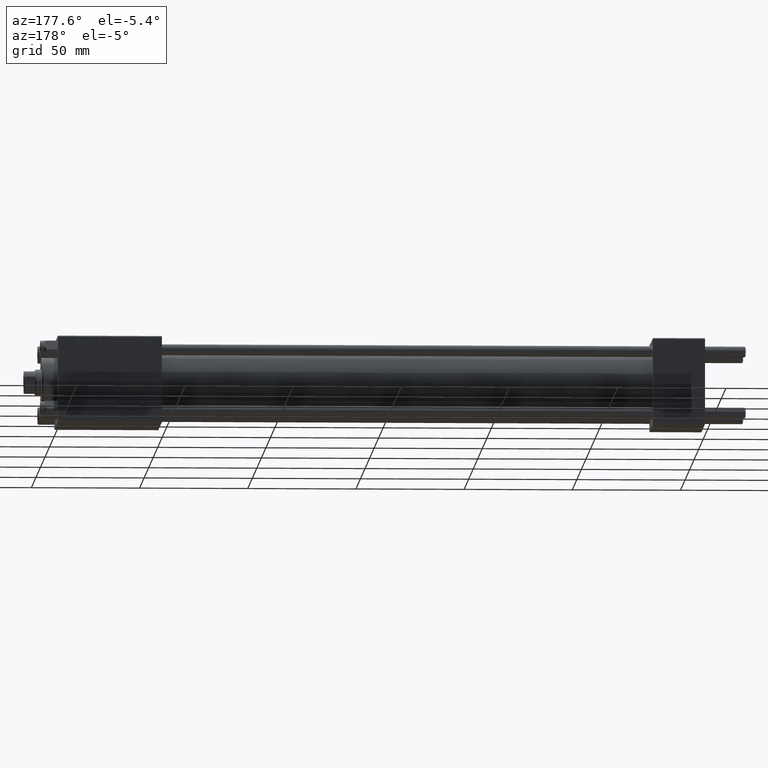
[diagram: clean part render]
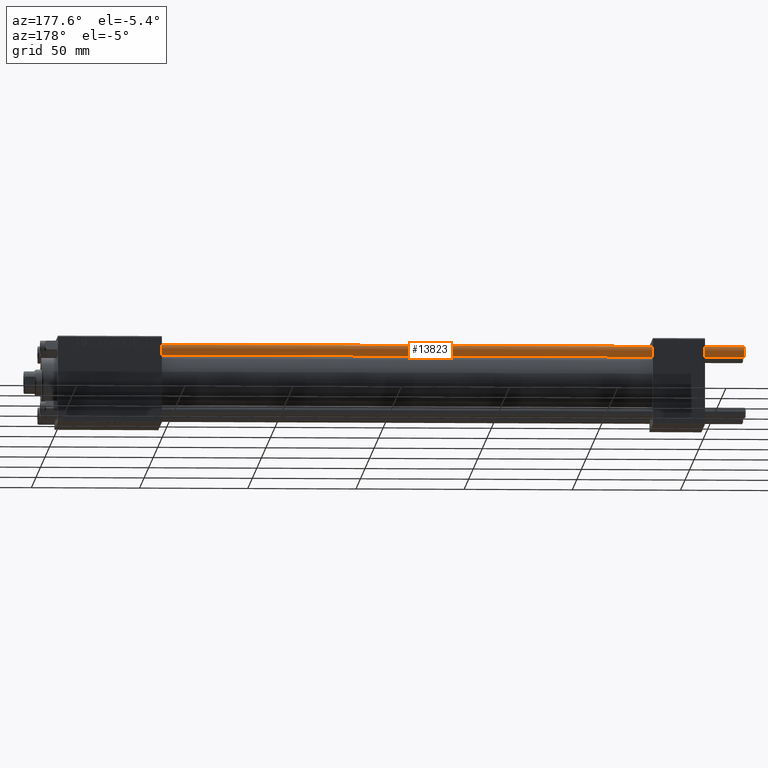
[diagram: same view with one face highlighted and labeled with its STEP entity id]
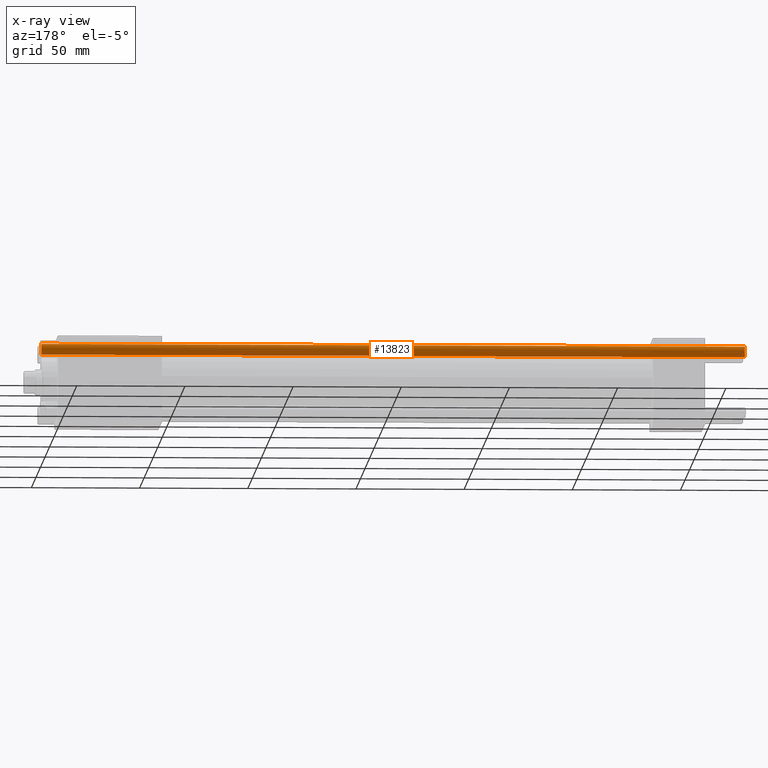
[diagram: x-ray of the same camera — body ghosted, the highlighted face saturated]
A machine part, auxiliary view. The second image highlights one B-rep face of the part: STEP entity #13823.
The next image is the same camera in x-ray: the body ghosted, the highlighted face saturated — about 0% of this face is hidden behind the body in this view.
In plain terms, the highlighted cylindrical surface (edge-blend (fillet) strip) has radius 2.5 mm, axis along (-1, -0, -0).
Its self-contained STEP definition (entity closure, byte-faithful):
#27 = CARTESIAN_POINT ( 'NONE',  ( 0.000000000000000000, 0.000000000000000000, 326.0000000000000000 ) ) ;
#1253 = CIRCLE ( 'NONE', #27856, 2.500000000000000000 ) ;
#2735 = EDGE_CURVE ( 'NONE', #37084, #43225, #11320, .T. ) ;
#3382 = LINE ( 'NONE', #25626, #12634 ) ;
#3662 = ORIENTED_EDGE ( 'NONE', *, *, #35606, .F. ) ;
#5645 = AXIS2_PLACEMENT_3D ( 'NONE', #11221, #5980, #38261 ) ;
#5980 = DIRECTION ( 'NONE',  ( 0.000000000000000000, 0.000000000000000000, -1.000000000000000000 ) ) ;
#7786 = VECTOR ( 'NONE', #27686, 1000.000000000000000 ) ;
#9785 = EDGE_LOOP ( 'NONE', ( #32160, #11732, #41149, #3662 ) ) ;
#10905 = DIRECTION ( 'NONE',  ( -0.000000000000000000, -0.000000000000000000, 1.000000000000000000 ) ) ;
#11221 = CARTESIAN_POINT ( 'NONE',  ( 0.000000000000000000, 0.000000000000000000, 325.5000000000000000 ) ) ;
#11320 = CIRCLE ( 'NONE', #5645, 2.500000000000000000 ) ;
#11732 = ORIENTED_EDGE ( 'NONE', *, *, #26496, .T. ) ;
#12634 = VECTOR ( 'NONE', #22839, 1000.000000000000000 ) ;
#13661 = CARTESIAN_POINT ( 'NONE',  ( -2.500000000000000000, 0.000000000000000000, 325.5000000000000000 ) ) ;
#13823 = ADVANCED_FACE ( 'NONE', ( #30086 ), #38674, .T. ) ;
#14927 = DIRECTION ( 'NONE',  ( -1.000000000000000000, 0.000000000000000000, 0.000000000000000000 ) ) ;
#15392 = VERTEX_POINT ( 'NONE', #27489 ) ;
#18995 = CARTESIAN_POINT ( 'NONE',  ( 0.000000000000000000, 0.000000000000000000, 0.4999999999999449329 ) ) ;
#22164 = EDGE_CURVE ( 'NONE', #15392, #29195, #1253, .T. ) ;
#22839 = DIRECTION ( 'NONE',  ( -0.000000000000000000, -0.000000000000000000, -1.000000000000000000 ) ) ;
#25626 = CARTESIAN_POINT ( 'NONE',  ( 2.500000000000000000, 3.061616997868383141E-16, 326.0000000000000000 ) ) ;
#26333 = DIRECTION ( 'NONE',  ( 1.000000000000000000, 0.000000000000000000, 0.000000000000000000 ) ) ;
#26496 = EDGE_CURVE ( 'NONE', #43225, #15392, #3382, .T. ) ;
#27489 = CARTESIAN_POINT ( 'NONE',  ( 2.500000000000000000, 3.061616997868383141E-16, 0.4999999999999449329 ) ) ;
#27680 = AXIS2_PLACEMENT_3D ( 'NONE', #27, #38419, #14927 ) ;
#27686 = DIRECTION ( 'NONE',  ( -0.000000000000000000, -0.000000000000000000, -1.000000000000000000 ) ) ;
#27856 = AXIS2_PLACEMENT_3D ( 'NONE', #18995, #10905, #26333 ) ;
#29195 = VERTEX_POINT ( 'NONE', #30495 ) ;
#30086 = FACE_OUTER_BOUND ( 'NONE', #9785, .T. ) ;
#30495 = CARTESIAN_POINT ( 'NONE',  ( -2.500000000000000000, 0.000000000000000000, 0.4999999999999449329 ) ) ;
#31482 = LINE ( 'NONE', #39304, #7786 ) ;
#32160 = ORIENTED_EDGE ( 'NONE', *, *, #2735, .T. ) ;
#35606 = EDGE_CURVE ( 'NONE', #37084, #29195, #31482, .T. ) ;
#37084 = VERTEX_POINT ( 'NONE', #13661 ) ;
#38261 = DIRECTION ( 'NONE',  ( 1.000000000000000000, 0.000000000000000000, 0.000000000000000000 ) ) ;
#38419 = DIRECTION ( 'NONE',  ( -0.000000000000000000, -0.000000000000000000, -1.000000000000000000 ) ) ;
#38674 = CYLINDRICAL_SURFACE ( 'NONE', #27680, 2.500000000000000000 ) ;
#39304 = CARTESIAN_POINT ( 'NONE',  ( -2.500000000000000000, 0.000000000000000000, 326.0000000000000000 ) ) ;
#41149 = ORIENTED_EDGE ( 'NONE', *, *, #22164, .T. ) ;
#43225 = VERTEX_POINT ( 'NONE', #48660 ) ;
#48660 = CARTESIAN_POINT ( 'NONE',  ( 2.500000000000000000, 3.061616997868383141E-16, 325.5000000000000000 ) ) ;